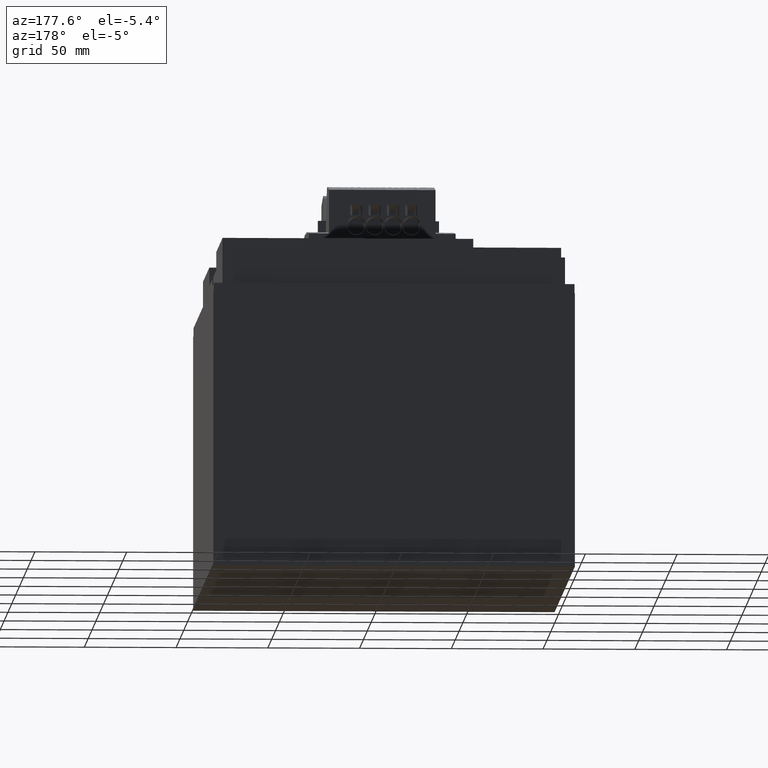
[diagram: clean part render]
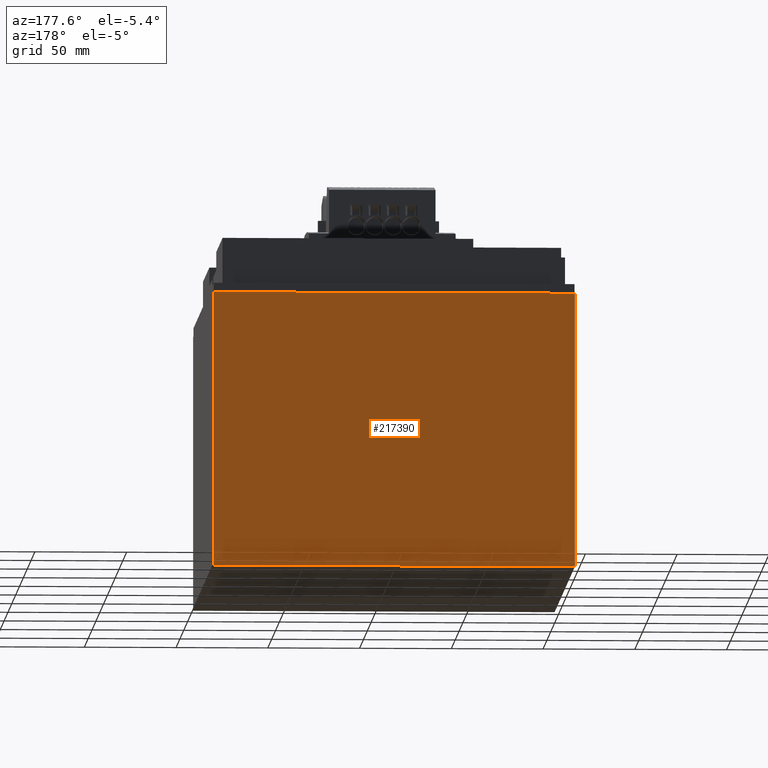
[diagram: same view with one face highlighted and labeled with its STEP entity id]
A machine part, auxiliary view. The second image highlights one B-rep face of the part: STEP entity #217390.
In plain terms, the highlighted planar face has unit normal (0, -1, 0).
Its self-contained STEP definition (entity closure, byte-faithful):
#11240=CARTESIAN_POINT('',(197.,518.55,-2.5000000000003));
#11250=VERTEX_POINT('',#11240);
#11330=CARTESIAN_POINT('',(197.,518.55,147.));
#11340=VERTEX_POINT('',#11330);
#11370=CARTESIAN_POINT('',(197.,518.55,0.));
#11380=DIRECTION('',(-1.38777878078145E-16,-1.38777878078145E-16,-1.));
#11390=VECTOR('',#11380,1.);
#11400=LINE('',#11370,#11390);
#11410=EDGE_CURVE('',#11340,#11250,#11400,.T.);
#216660=CARTESIAN_POINT('',(-2.91340620285172E-14,518.55,0.));
#216670=DIRECTION('',(-1.38777878078145E-16,-1.38777878078145E-16,-1.));
#216680=VECTOR('',#216670,1.);
#216690=LINE('',#216660,#216680);
#216700=CARTESIAN_POINT('',(-8.73371395103001E-15,518.55,147.));
#216710=VERTEX_POINT('',#216700);
#216720=CARTESIAN_POINT('',(-2.94810067237126E-14,518.55,
-2.50000000000027));
#216730=VERTEX_POINT('',#216720);
#216740=EDGE_CURVE('',#216710,#216730,#216690,.T.);
#217070=CARTESIAN_POINT('',(0.,518.55,-2.50000000000027));
#217080=DIRECTION('',(-1.,2.46519032881566E-32,1.38777878078145E-16));
#217090=VECTOR('',#217080,1.);
#217100=LINE('',#217070,#217090);
#217110=EDGE_CURVE('',#11250,#216730,#217100,.T.);
#217230=CARTESIAN_POINT('',(197.,518.55,147.));
#217240=DIRECTION('',(0.,-1.,1.38777878078145E-16));
#217250=DIRECTION('',(1.38777878078145E-16,1.38777878078145E-16,1.));
#217260=AXIS2_PLACEMENT_3D('',#217230,#217240,#217250);
#217270=PLANE('',#217260);
#217280=ORIENTED_EDGE('',*,*,#217110,.T.);
#217290=ORIENTED_EDGE('',*,*,#11410,.T.);
#217300=CARTESIAN_POINT('',(0.,518.55,147.));
#217310=DIRECTION('',(-1.,2.46519032881566E-32,1.38777878078145E-16));
#217320=VECTOR('',#217310,1.);
#217330=LINE('',#217300,#217320);
#217340=EDGE_CURVE('',#11340,#216710,#217330,.T.);
#217350=ORIENTED_EDGE('',*,*,#217340,.F.);
#217360=ORIENTED_EDGE('',*,*,#216740,.F.);
#217370=EDGE_LOOP('',(#217360,#217350,#217290,#217280));
#217380=FACE_OUTER_BOUND('',#217370,.T.);
#217390=ADVANCED_FACE('',(#217380),#217270,.F.);